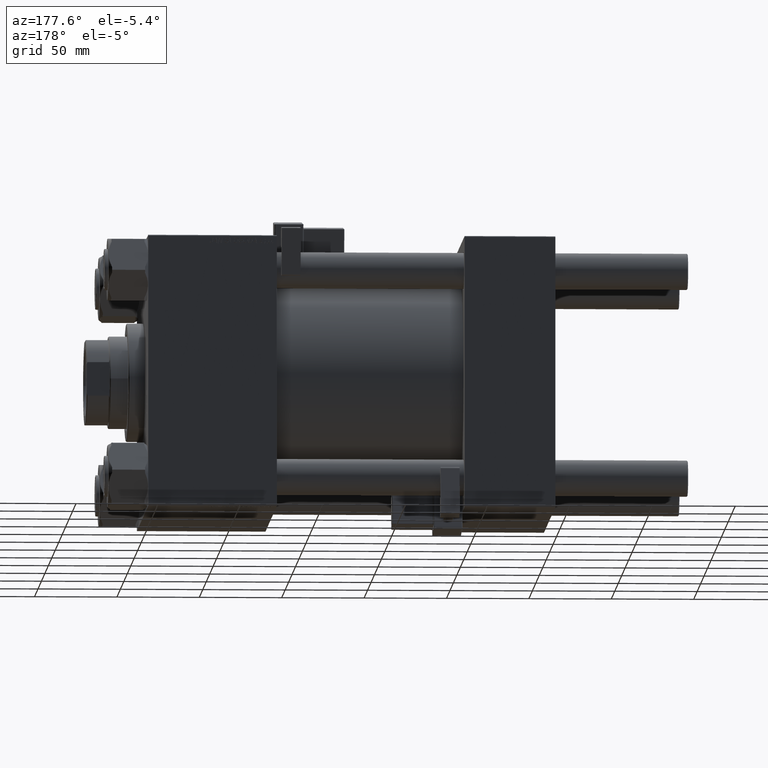
[diagram: clean part render]
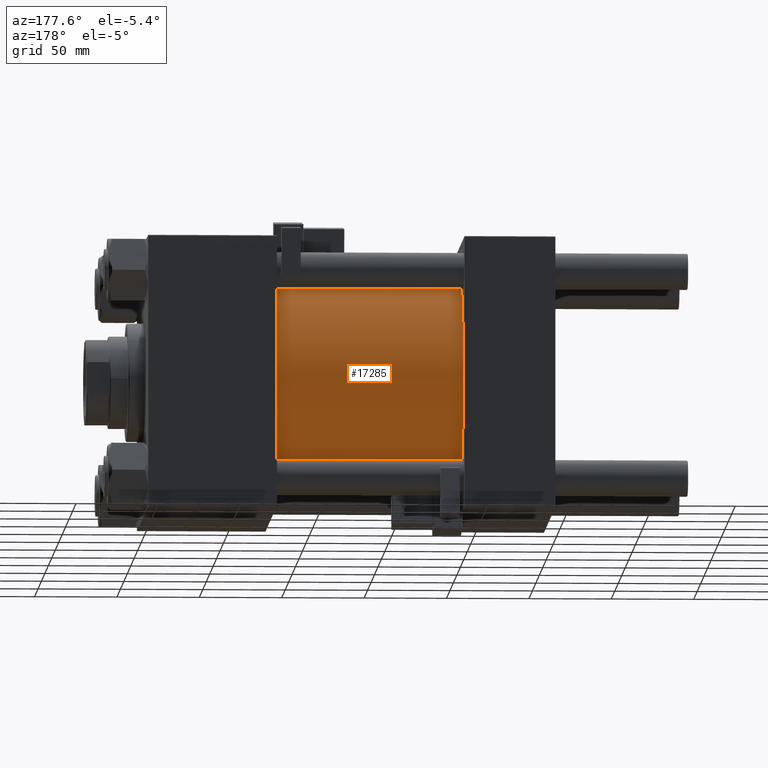
[diagram: same view with one face highlighted and labeled with its STEP entity id]
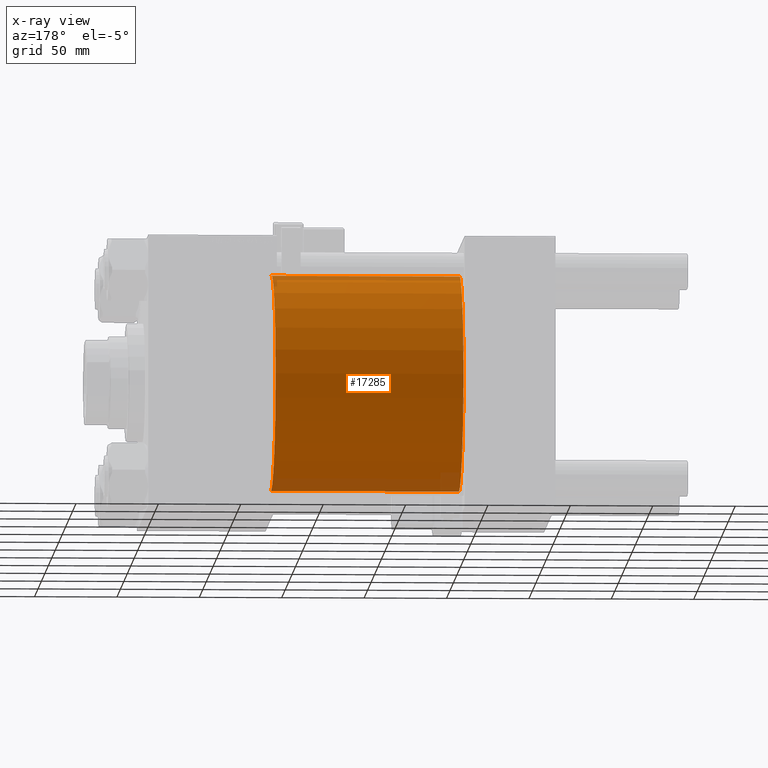
[diagram: x-ray of the same camera — body ghosted, the highlighted face saturated]
A machine part, auxiliary view. The second image highlights one B-rep face of the part: STEP entity #17285.
The next image is the same camera in x-ray: the body ghosted, the highlighted face saturated — about 8% of this face is hidden behind the body in this view.
In plain terms, the highlighted cylindrical surface (partial cylindrical patch) has radius 65.5 mm, axis along (-1, -0, -0).
Its self-contained STEP definition (entity closure, byte-faithful):
#4215 = CARTESIAN_POINT ( 'NONE',  ( 169.0000000000000000, 0.000000000000000000, 0.000000000000000000 ) ) ;
#4696 = CARTESIAN_POINT ( 'NONE',  ( 54.99999999999999289, 0.000000000000000000, 65.50000000000001421 ) ) ;
#7091 = CARTESIAN_POINT ( 'NONE',  ( 169.0000000000000000, 0.000000000000000000, 0.000000000000000000 ) ) ;
#7871 = DIRECTION ( 'NONE',  ( -1.000000000000000000, -0.000000000000000000, -0.000000000000000000 ) ) ;
#8151 = VERTEX_POINT ( 'NONE', #47397 ) ;
#8719 = CARTESIAN_POINT ( 'NONE',  ( 169.0000000000000000, 8.021436534415164826E-15, -65.50000000000001421 ) ) ;
#8768 = CARTESIAN_POINT ( 'NONE',  ( 169.0000000000000000, 8.021436534415164826E-15, -65.50000000000001421 ) ) ;
#11014 = CARTESIAN_POINT ( 'NONE',  ( 54.99999999999999289, 8.021436534415164826E-15, -65.50000000000001421 ) ) ;
#12040 = EDGE_LOOP ( 'NONE', ( #52130, #36614, #48481, #49419 ) ) ;
#13440 = CIRCLE ( 'NONE', #25393, 65.50000000000001421 ) ;
#14813 = DIRECTION ( 'NONE',  ( 0.000000000000000000, 0.000000000000000000, 1.000000000000000000 ) ) ;
#15009 = LINE ( 'NONE', #23546, #37315 ) ;
#17285 = ADVANCED_FACE ( 'NONE', ( #48357 ), #23868, .T. ) ;
#18230 = DIRECTION ( 'NONE',  ( -1.000000000000000000, -0.000000000000000000, -0.000000000000000000 ) ) ;
#21827 = VECTOR ( 'NONE', #41747, 1000.000000000000000 ) ;
#23546 = CARTESIAN_POINT ( 'NONE',  ( 169.0000000000000000, 0.000000000000000000, 65.50000000000001421 ) ) ;
#23868 = CYLINDRICAL_SURFACE ( 'NONE', #42875, 65.50000000000001421 ) ;
#24728 = DIRECTION ( 'NONE',  ( 1.000000000000000000, 0.000000000000000000, 0.000000000000000000 ) ) ;
#25393 = AXIS2_PLACEMENT_3D ( 'NONE', #26751, #30737, #38999 ) ;
#25829 = VERTEX_POINT ( 'NONE', #11014 ) ;
#26751 = CARTESIAN_POINT ( 'NONE',  ( 54.99999999999999289, 0.000000000000000000, 0.000000000000000000 ) ) ;
#27520 = EDGE_CURVE ( 'NONE', #34201, #25829, #28701, .T. ) ;
#28701 = LINE ( 'NONE', #8719, #21827 ) ;
#30737 = DIRECTION ( 'NONE',  ( 1.000000000000000000, -0.000000000000000000, -0.000000000000000000 ) ) ;
#31675 = EDGE_CURVE ( 'NONE', #25829, #50228, #13440, .T. ) ;
#34201 = VERTEX_POINT ( 'NONE', #8768 ) ;
#35792 = EDGE_CURVE ( 'NONE', #8151, #50228, #15009, .T. ) ;
#36614 = ORIENTED_EDGE ( 'NONE', *, *, #27520, .T. ) ;
#37315 = VECTOR ( 'NONE', #18230, 1000.000000000000000 ) ;
#38774 = EDGE_CURVE ( 'NONE', #34201, #8151, #45875, .T. ) ;
#38999 = DIRECTION ( 'NONE',  ( 0.000000000000000000, 0.000000000000000000, 1.000000000000000000 ) ) ;
#41747 = DIRECTION ( 'NONE',  ( -1.000000000000000000, -0.000000000000000000, -0.000000000000000000 ) ) ;
#42532 = AXIS2_PLACEMENT_3D ( 'NONE', #4215, #24728, #52680 ) ;
#42875 = AXIS2_PLACEMENT_3D ( 'NONE', #7091, #7871, #14813 ) ;
#45875 = CIRCLE ( 'NONE', #42532, 65.50000000000001421 ) ;
#47397 = CARTESIAN_POINT ( 'NONE',  ( 169.0000000000000000, 0.000000000000000000, 65.50000000000001421 ) ) ;
#48357 = FACE_OUTER_BOUND ( 'NONE', #12040, .T. ) ;
#48481 = ORIENTED_EDGE ( 'NONE', *, *, #31675, .T. ) ;
#49419 = ORIENTED_EDGE ( 'NONE', *, *, #35792, .F. ) ;
#50228 = VERTEX_POINT ( 'NONE', #4696 ) ;
#52130 = ORIENTED_EDGE ( 'NONE', *, *, #38774, .F. ) ;
#52680 = DIRECTION ( 'NONE',  ( 0.000000000000000000, 0.000000000000000000, -1.000000000000000000 ) ) ;